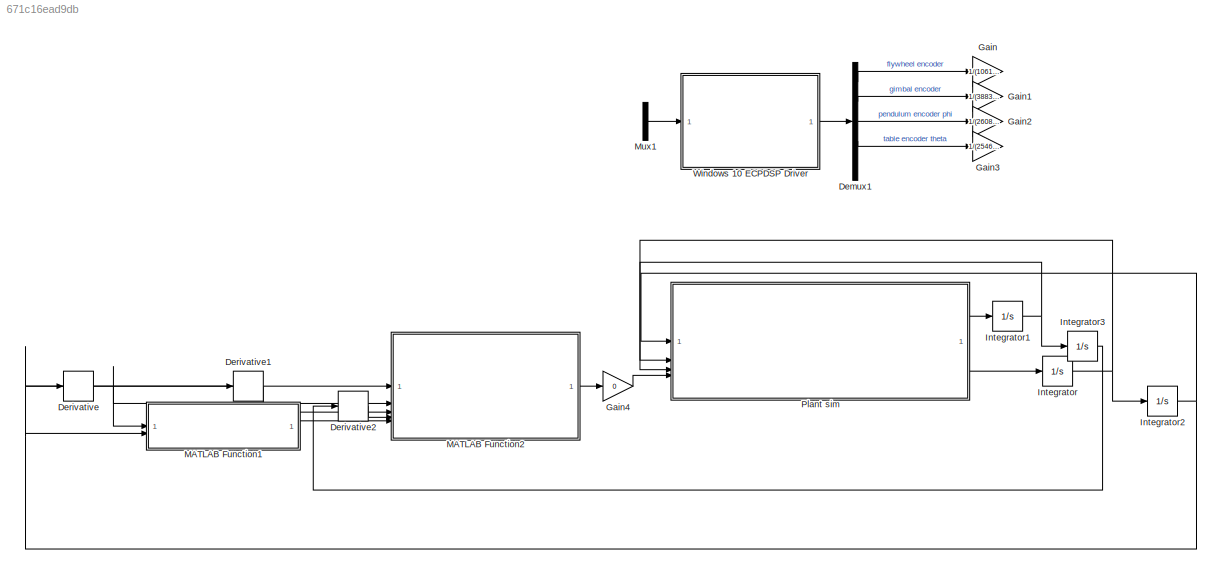
MODEL slx_671c16ead9db
KIND model
CONFIG AbsTol = auto
CONFIG EnableMultiTasking = on
CONFIG FixedStep = auto
CONFIG MaxStep = auto
CONFIG MinStep = auto
CONFIG RelTol = 1e-3
CONFIG SampleTimeConstraint = Unconstrained
CONFIG SolverName = ode1
CONFIG StartTime = 0.0
CONFIG StopTime = 300
BLOCK [Demux] Demux1
  Commented = on
  DisplayOption = none
  Outputs = 5
BLOCK [Derivative] Derivative
BLOCK [Derivative] Derivative1
BLOCK [Derivative] Derivative2
BLOCK [Gain] Gain
  Commented = on
  Gain = 1/(1061*32)
BLOCK [Gain] Gain1
  Commented = on
  Gain = 1/(3883*32)
BLOCK [Gain] Gain2
  Commented = on
  Gain = 1/(2608*32)
BLOCK [Gain] Gain3
  Commented = on
  Gain = 1/(2546*32)
BLOCK [Gain] Gain4
  Gain = 0
BLOCK [Integrator] Integrator
BLOCK [Integrator] Integrator1
BLOCK [Integrator] Integrator2
  InitialCondition = pi
BLOCK [Integrator] Integrator3
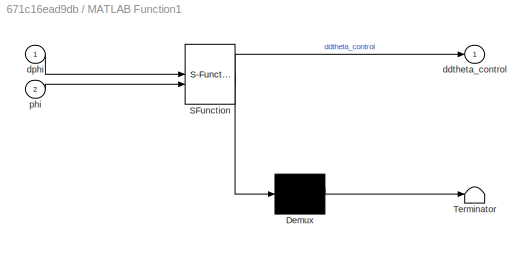
BLOCK [SubSystem] MATLAB Function1
  ErrorFcn = Stateflow.Translate.translate
  PermitHierarchicalResolution = ExplicitOnly
  SFBlockType = MATLAB Function
  TreatAsAtomicUnit = on
BLOCK [Demux] MATLAB Function1/ Demux 
  Outputs = 1
BLOCK [S-Function] MATLAB Function1/ SFunction 
  EnableBusSupport = off
  FunctionName = sf_sfun
  PortCounts = [2 2]
  SFcnIsStateOwnerBlock = off
  SFunctionDeploymentMode = off
  Tag = Stateflow S-Function 1
BLOCK [Terminator] MATLAB Function1/ Terminator 
BLOCK [Outport] MATLAB Function1/ddtheta_control
BLOCK [Inport] MATLAB Function1/dphi
BLOCK [Inport] MATLAB Function1/phi
  Port = 2
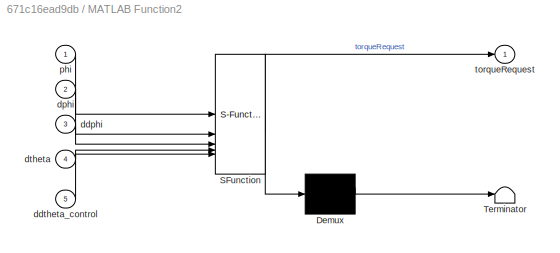
BLOCK [SubSystem] MATLAB Function2
  ErrorFcn = Stateflow.Translate.translate
  PermitHierarchicalResolution = ExplicitOnly
  SFBlockType = MATLAB Function
  TreatAsAtomicUnit = on
BLOCK [Demux] MATLAB Function2/ Demux 
  Outputs = 1
BLOCK [S-Function] MATLAB Function2/ SFunction 
  EnableBusSupport = off
  FunctionName = sf_sfun
  PortCounts = [5 2]
  SFcnIsStateOwnerBlock = off
  SFunctionDeploymentMode = off
  Tag = Stateflow S-Function 3
BLOCK [Terminator] MATLAB Function2/ Terminator 
BLOCK [Inport] MATLAB Function2/ddphi
  Port = 3
BLOCK [Inport] MATLAB Function2/ddtheta_control
  Port = 5
BLOCK [Inport] MATLAB Function2/dphi
  Port = 2
BLOCK [Inport] MATLAB Function2/dtheta
  Port = 4
BLOCK [Inport] MATLAB Function2/phi
BLOCK [Outport] MATLAB Function2/torqueRequest
BLOCK [Mux] Mux1
  Commented = on
  DisplayOption = bar
  Inputs = 2
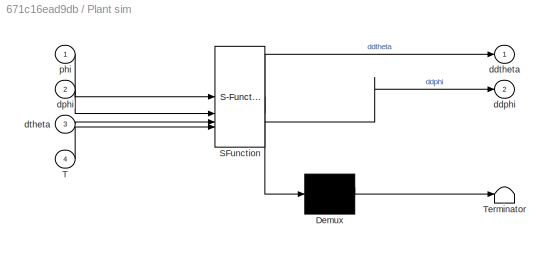
BLOCK [SubSystem] Plant sim
  ErrorFcn = Stateflow.Translate.translate
  PermitHierarchicalResolution = ExplicitOnly
  SFBlockType = MATLAB Function
  TreatAsAtomicUnit = on
BLOCK [Demux] Plant sim/ Demux 
  Outputs = 1
BLOCK [S-Function] Plant sim/ SFunction 
  EnableBusSupport = off
  FunctionName = sf_sfun
  PortCounts = [4 3]
  SFcnIsStateOwnerBlock = off
  SFunctionDeploymentMode = off
  Tag = Stateflow S-Function 2
BLOCK [Terminator] Plant sim/ Terminator 
BLOCK [Inport] Plant sim/T
  Port = 4
BLOCK [Outport] Plant sim/ddphi
  Port = 2
BLOCK [Outport] Plant sim/ddtheta
BLOCK [Inport] Plant sim/dphi
  Port = 2
BLOCK [Inport] Plant sim/dtheta
  Port = 3
BLOCK [Inport] Plant sim/phi
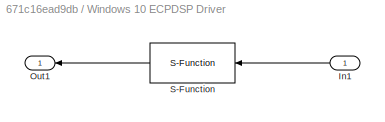
BLOCK [SubSystem] Windows 10 ECPDSP Driver
  Commented = on
BLOCK [Inport] Windows 10 ECPDSP Driver/In1
BLOCK [Outport] Windows 10 ECPDSP Driver/Out1
BLOCK [S-Function] Windows 10 ECPDSP Driver/S-Function
  EnableBusSupport = off
  FunctionName = ECPDSPDriver
  Parameters = BaseAddr,STime,TimeOutPer,HWAccess
  SFcnIsStateOwnerBlock = off
  SFunctionDeploymentMode = off
LINE Demux1:1 -> Gain:1
LINE Demux1:2 -> Gain1:1
LINE Demux1:3 -> Gain2:1
LINE Demux1:4 -> Gain3:1
LINE Derivative1:1 -> MATLAB Function2:3
LINE Derivative2:1 -> MATLAB Function2:4
NET Derivative:1 -> Derivative1:1, MATLAB Function1:1, MATLAB Function2:2
LINE Gain4:1 -> Plant sim:4
NET Integrator1:1 -> Integrator3:1, Plant sim:3
NET Integrator2:1 -> Derivative:1, MATLAB Function1:2, MATLAB Function2:1, Plant sim:1
LINE Integrator3:1 -> Derivative2:1
NET Integrator:1 -> Integrator2:1, Plant sim:2
LINE MATLAB Function1:1 -> MATLAB Function2:5
LINE MATLAB Function2:1 -> Gain4:1
LINE Mux1:1 -> Windows 10 ECPDSP Driver:1
LINE Plant sim:1 -> Integrator1:1
LINE Plant sim:2 -> Integrator:1
LINE Windows 10 ECPDSP Driver/In1:1 -> Windows 10 ECPDSP Driver/S-Function:1
LINE Windows 10 ECPDSP Driver/S-Function:1 -> Windows 10 ECPDSP Driver/Out1:1
LINE Windows 10 ECPDSP Driver:1 -> Demux1:1
note: NET lines group one-source signal fan-out (src -> all destinations, sorted); 1:1 wires keep LINE
CHART MATLAB Function1 states=1 transitions=1
  STATE_LABEL 'eML_blk_kernel()'
  STATE_LABEL 'SCRIPT:\nfunction ddtheta_control = fcn(dphi, phi)\nR = Rh\nl = lcg;\nr = 0; %reduced into J1_bar\nM = 0; %reduced into J1_bar\ng = grav;\nc1 = 1; %friction of base\nc2 = 0; %friction of pivot\n\nJ =  J1_bar% J - inertia of the table\nIyy = Jy \nI = Jz_bar%  I - inertia of the pendulum\n\nk = 1\nE = 0.5*I*dphi^2+m*g*l*(cos(phi)-1);\nddtheta_control = -k*E*dphi*cos(phi)/R;\n\n\n'
CHART Plant sim states=1 transitions=1
  STATE_LABEL 'eML_blk_kernel()'
  STATE_LABEL 'SCRIPT:\nfunction [ddtheta, ddphi] = fcn(phi, dphi, dtheta, T)\n\nR = Rh\nl = lcg;\nr = 0; %reduced into J1_bar\nM = 0; %reduced into J1_bar\ng = grav;\nc1 = 1; %friction of base\nc2 = 0; %friction of pivot\n\nJ =  J1_bar% J - inertia of the table\nIyy = Jy \nI = Jz_bar%  I - inertia of the pendulum\n\nddtheta = -(R*m*sin(phi)*dphi^2*l + dtheta*m*sin(2*phi)*dphi*l^2 + Iyy*dtheta*sin(2*phi)*dphi - R*ddphi*m*cos(p...<+479ch>'
CHART MATLAB Function2 states=1 transitions=1
  STATE_LABEL 'eML_blk_kernel()'
  STATE_LABEL 'SCRIPT:\nfunction torqueRequest = fcn(phi, dphi, ddphi,dtheta, ddtheta_control)\nR = Rh;\nl = lcg;\nr = 0; %reduced into J1_bar\nM = 0; %reduced into J1_bar\ng = grav;\nc1 = 1; %friction of base\nc2 = 0; %friction of pivot\n\nJ =  J1_bar% J - inertia of the table\nIyy = Jy \nI = Jz_bar%  I - inertia of the pendulum\n\n torqueRequest = Iyy*ddtheta_control + J*ddtheta_control + c1*dtheta + ddtheta_control*m*R^2 +...<+198ch>'
CHART  states=0 transitions=0
CHART  states=0 transitions=0
CHART  states=0 transitions=0
